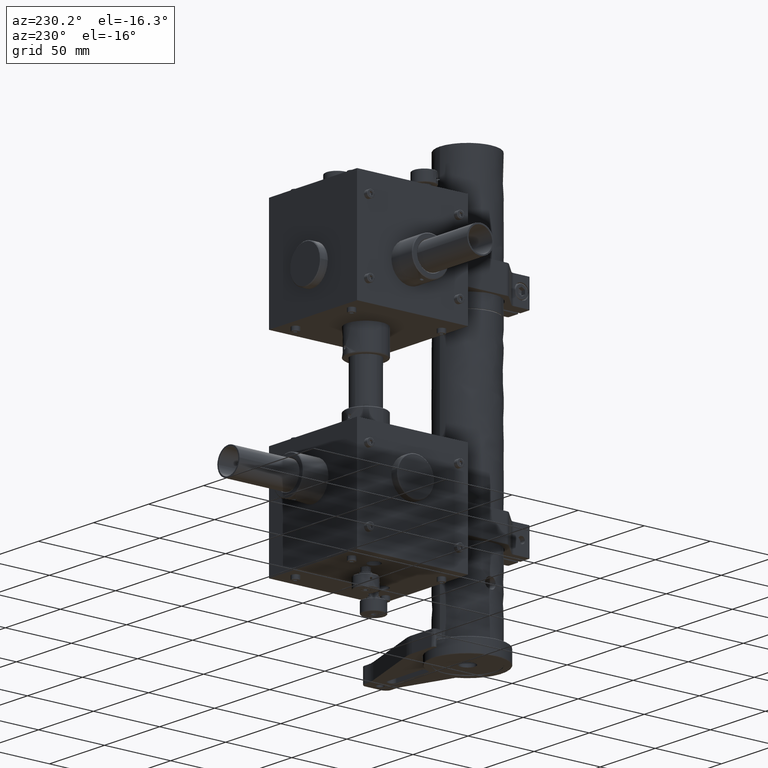
[diagram: clean part render]
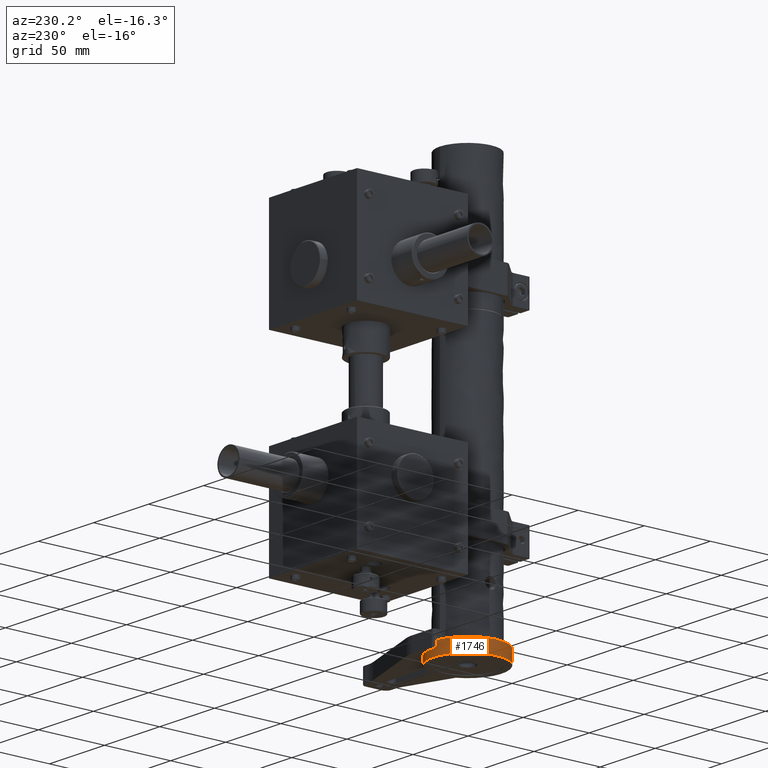
[diagram: same view with one face highlighted and labeled with its STEP entity id]
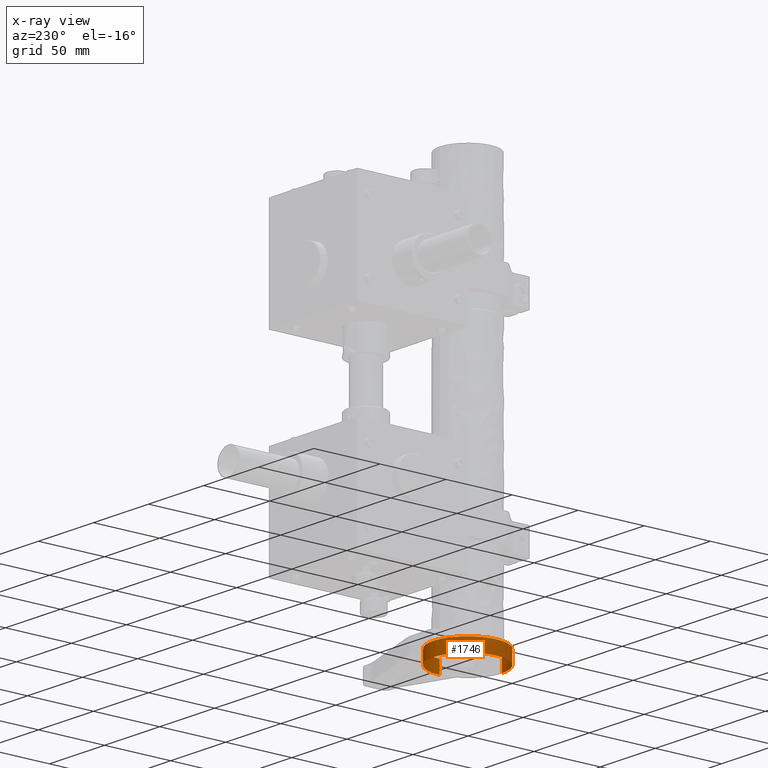
[diagram: x-ray of the same camera — body ghosted, the highlighted face saturated]
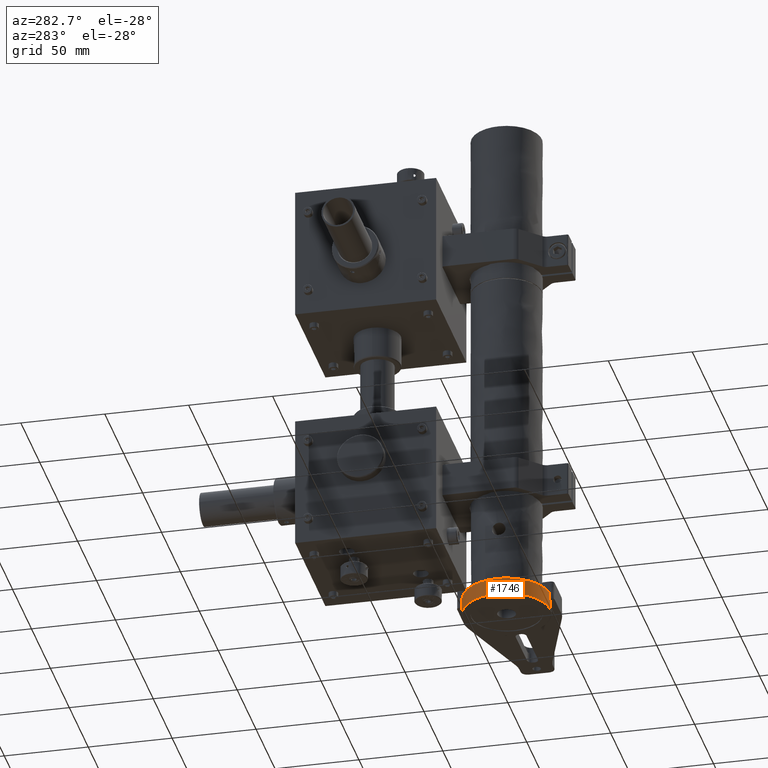
[diagram: same view with one face highlighted and labeled with its STEP entity id]
A machine part, auxiliary view. The second image highlights one B-rep face of the part: STEP entity #1746.
The next image is the same camera in x-ray: the body ghosted, the highlighted face saturated — about 0% of this face is hidden behind the body in this view.
A second angle (auxiliary view) of the same face is appended — the face is thin or edge-on in the first view.
In plain terms, the highlighted face is a freeform B-spline surface patch.
Its self-contained STEP definition (entity closure, byte-faithful):
#1746=ADVANCED_FACE('',(#4832),#105281,.T.);
#4832=FACE_OUTER_BOUND('',#7671,.T.);
#7671=EDGE_LOOP('',(#11995,#11996,#11997,#11998,#11999,#12000));
#11995=ORIENTED_EDGE('',*,*,#87299,.F.);
#11996=ORIENTED_EDGE('',*,*,#87302,.F.);
#11997=ORIENTED_EDGE('',*,*,#87304,.F.);
#11998=ORIENTED_EDGE('',*,*,#87306,.T.);
#11999=ORIENTED_EDGE('',*,*,#87307,.T.);
#12000=ORIENTED_EDGE('',*,*,#87305,.F.);
#27339=B_SPLINE_CURVE_WITH_KNOTS('',1,(#136616,#136617),.UNSPECIFIED.,.F.,
 .F.,(2,2),(81.6814089933347,163.362817986669),.UNSPECIFIED.);
#27342=B_SPLINE_CURVE_WITH_KNOTS('',1,(#136632,#136633),.UNSPECIFIED.,.F.,
 .F.,(2,2),(40.3496311323151,81.6814089933347),.UNSPECIFIED.);
#27347=B_SPLINE_CURVE_WITH_KNOTS('',1,(#136647,#136648),.UNSPECIFIED.,.F.,
 .F.,(2,2),(1.11000000000042,11.0100000000004),.UNSPECIFIED.);
#27349=B_SPLINE_CURVE_WITH_KNOTS('',1,(#136653,#136654),.UNSPECIFIED.,.F.,
 .F.,(2,2),(0.,9.9),.UNSPECIFIED.);
#27350=B_SPLINE_CURVE_WITH_KNOTS('',1,(#136655,#136656),.UNSPECIFIED.,.F.,
 .F.,(2,2),(81.6814089933347,163.362817986669),.UNSPECIFIED.);
#27351=B_SPLINE_CURVE_WITH_KNOTS('',1,(#136657,#136658),.UNSPECIFIED.,.F.,
 .F.,(2,2),(40.3496311323151,81.6814089933347),.UNSPECIFIED.);
#27352=B_SPLINE_CURVE_WITH_KNOTS('',1,(#136659,#136660),.UNSPECIFIED.,.F.,
 .F.,(2,2),(1.11000000000042,11.0100000000004),.UNSPECIFIED.);
#27353=B_SPLINE_CURVE_WITH_KNOTS('',1,(#136666,#136667),.UNSPECIFIED.,.F.,
 .F.,(2,2),(-123.013186854354,-81.6814089933346),.UNSPECIFIED.);
#27354=B_SPLINE_CURVE_WITH_KNOTS('',1,(#136675,#136676),.UNSPECIFIED.,.F.,
 .F.,(2,2),(-81.6814089933346,0.),.UNSPECIFIED.);
#27355=B_SPLINE_CURVE_WITH_KNOTS('',1,(#136677,#136678),.UNSPECIFIED.,.F.,
 .F.,(2,2),(0.,9.9),.UNSPECIFIED.);
#27358=B_SPLINE_CURVE_WITH_KNOTS('',1,(#136688,#136689),.UNSPECIFIED.,.F.,
 .F.,(2,2),(-123.013186854354,-81.6814089933346),.UNSPECIFIED.);
#27363=B_SPLINE_CURVE_WITH_KNOTS('',1,(#136706,#136707),.UNSPECIFIED.,.F.,
 .F.,(2,2),(-81.6814089933346,0.),.UNSPECIFIED.);
#47707=PCURVE('',#105278,#63203);
#47710=PCURVE('',#105279,#63206);
#47715=PCURVE('',#105280,#63211);
#47717=PCURVE('',#105280,#63213);
#47718=PCURVE('',#105281,#63214);
#47719=PCURVE('',#105281,#63215);
#47720=PCURVE('',#105281,#63216);
#47721=PCURVE('',#105281,#63217);
#47722=PCURVE('',#105281,#63218);
#47723=PCURVE('',#105281,#63219);
#47726=PCURVE('',#105282,#63222);
#47731=PCURVE('',#105283,#63227);
#63203=DEFINITIONAL_REPRESENTATION('',(#27339),#277684);
#63206=DEFINITIONAL_REPRESENTATION('',(#27342),#277684);
#63211=DEFINITIONAL_REPRESENTATION('',(#27347),#277684);
#63213=DEFINITIONAL_REPRESENTATION('',(#27349),#277684);
#63214=DEFINITIONAL_REPRESENTATION('',(#27350),#277684);
#63215=DEFINITIONAL_REPRESENTATION('',(#27351),#277684);
#63216=DEFINITIONAL_REPRESENTATION('',(#27352),#277684);
#63217=DEFINITIONAL_REPRESENTATION('',(#27353),#277684);
#63218=DEFINITIONAL_REPRESENTATION('',(#27354),#277684);
#63219=DEFINITIONAL_REPRESENTATION('',(#27355),#277684);
#63222=DEFINITIONAL_REPRESENTATION('',(#27358),#277684);
#63227=DEFINITIONAL_REPRESENTATION('',(#27363),#277684);
#77992=SURFACE_CURVE('',#96747,(#47707,#47718),.PCURVE_S1.);
#77995=SURFACE_CURVE('',#96750,(#47710,#47719),.PCURVE_S1.);
#77997=SURFACE_CURVE('',#96752,(#47715,#47720),.PCURVE_S1.);
#77998=SURFACE_CURVE('',#96753,(#47717,#47723),.PCURVE_S1.);
#77999=SURFACE_CURVE('',#96754,(#47721,#47726),.PCURVE_S1.);
#78000=SURFACE_CURVE('',#96755,(#47722,#47731),.PCURVE_S1.);
#87299=EDGE_CURVE('',#100891,#100892,#77992,.T.);
#87302=EDGE_CURVE('',#100893,#100891,#77995,.T.);
#87304=EDGE_CURVE('',#100895,#100893,#77997,.T.);
#87305=EDGE_CURVE('',#100892,#100894,#77998,.T.);
#87306=EDGE_CURVE('',#100895,#100896,#77999,.T.);
#87307=EDGE_CURVE('',#100896,#100894,#78000,.T.);
#96747=(
BOUNDED_CURVE()
B_SPLINE_CURVE(2,(#136609,#136610,#136611,#136612,#136613,#136614,#136615),
 .UNSPECIFIED.,.F.,.F.)
B_SPLINE_CURVE_WITH_KNOTS((3,2,2,3),(81.6814089933347,121.978777346525,
162.819481843192,163.362817986669),.UNSPECIFIED.)
CURVE()
GEOMETRIC_REPRESENTATION_ITEM()
RATIONAL_B_SPLINE_CURVE((1.,0.713752868344958,1.,0.707106781186548,1.,0.999955408421425,
1.))
REPRESENTATION_ITEM('')
);
#96750=(
BOUNDED_CURVE()
B_SPLINE_CURVE(2,(#136627,#136628,#136629,#136630,#136631),
 .UNSPECIFIED.,.F.,.F.)
B_SPLINE_CURVE_WITH_KNOTS((3,2,3),(40.3496311323151,40.892280983678,81.6814089933347),
 .UNSPECIFIED.)
CURVE()
GEOMETRIC_REPRESENTATION_ITEM()
RATIONAL_B_SPLINE_CURVE((1.,0.999955408442769,1.,0.707106781186548,1.))
REPRESENTATION_ITEM('')
);
#96752=(
BOUNDED_CURVE()
B_SPLINE_CURVE(1,(#136645,#136646),.UNSPECIFIED.,.F.,.F.)
B_SPLINE_CURVE_WITH_KNOTS((2,2),(1.11000000000042,11.0100000000004),
 .UNSPECIFIED.)
CURVE()
GEOMETRIC_REPRESENTATION_ITEM()
RATIONAL_B_SPLINE_CURVE((1.,1.))
REPRESENTATION_ITEM('')
);
#96753=(
BOUNDED_CURVE()
B_SPLINE_CURVE(1,(#136651,#136652),.UNSPECIFIED.,.F.,.F.)
B_SPLINE_CURVE_WITH_KNOTS((2,2),(0.,9.9),.UNSPECIFIED.)
CURVE()
GEOMETRIC_REPRESENTATION_ITEM()
RATIONAL_B_SPLINE_CURVE((1.,1.))
REPRESENTATION_ITEM('')
);
#96754=(
BOUNDED_CURVE()
B_SPLINE_CURVE(2,(#136661,#136662,#136663,#136664,#136665),
 .UNSPECIFIED.,.F.,.F.)
B_SPLINE_CURVE_WITH_KNOTS((3,2,3),(-123.013186854354,-82.2240588446978,
-81.6814089933346),.UNSPECIFIED.)
CURVE()
GEOMETRIC_REPRESENTATION_ITEM()
RATIONAL_B_SPLINE_CURVE((1.,0.707106781186548,1.,0.999955408442769,1.))
REPRESENTATION_ITEM('')
);
#96755=(
BOUNDED_CURVE()
B_SPLINE_CURVE(2,(#136668,#136669,#136670,#136671,#136672,#136673,#136674),
 .UNSPECIFIED.,.F.,.F.)
B_SPLINE_CURVE_WITH_KNOTS((3,2,2,3),(-81.6814089933346,-41.3840406401445,
-0.543336143477276,0.),.UNSPECIFIED.)
CURVE()
GEOMETRIC_REPRESENTATION_ITEM()
RATIONAL_B_SPLINE_CURVE((1.,0.713752868344958,1.,0.707106781186548,1.,0.999955408421425,
1.))
REPRESENTATION_ITEM('')
);
#100891=VERTEX_POINT('',#133504);
#100892=VERTEX_POINT('',#133505);
#100893=VERTEX_POINT('',#133506);
#100894=VERTEX_POINT('',#133507);
#100895=VERTEX_POINT('',#133508);
#100896=VERTEX_POINT('',#133509);
#105278=(
BOUNDED_SURFACE()
B_SPLINE_SURFACE(2,1,((#126473,#126474),(#126475,#126476),(#126477,#126478),
(#126479,#126480),(#126481,#126482),(#126483,#126484),(#126485,#126486),
(#126487,#126488),(#126489,#126490)),.UNSPECIFIED.,.T.,.F.,.F.)
B_SPLINE_SURFACE_WITH_KNOTS((3,2,2,2,3),(2,2),(0.,45.1132705055501,90.2265410111002,
135.33981151665,180.4530820222),(0.,40.6162135113561),.UNSPECIFIED.)
GEOMETRIC_REPRESENTATION_ITEM()
RATIONAL_B_SPLINE_SURFACE(((1.,1.),(0.707106781186548,0.707106781186548),
(1.,1.),(0.707106781186548,0.707106781186548),(1.,1.),(0.707106781186548,
0.707106781186548),(1.,1.),(0.707106781186548,0.707106781186548),(1.,1.)))
REPRESENTATION_ITEM('')
SURFACE()
);
#105279=(
BOUNDED_SURFACE()
B_SPLINE_SURFACE(2,1,((#126491,#126492),(#126493,#126494),(#126495,#126496),
(#126497,#126498),(#126499,#126500),(#126501,#126502),(#126503,#126504),
(#126505,#126506),(#126507,#126508)),.UNSPECIFIED.,.T.,.F.,.F.)
B_SPLINE_SURFACE_WITH_KNOTS((3,2,2,2,3),(2,2),(0.,45.1132705055501,90.2265410111002,
135.33981151665,180.4530820222),(0.,40.6162135113561),.UNSPECIFIED.)
GEOMETRIC_REPRESENTATION_ITEM()
RATIONAL_B_SPLINE_SURFACE(((1.,1.),(0.707106781186548,0.707106781186548),
(1.,1.),(0.707106781186548,0.707106781186548),(1.,1.),(0.707106781186548,
0.707106781186548),(1.,1.),(0.707106781186548,0.707106781186548),(1.,1.)))
REPRESENTATION_ITEM('')
SURFACE()
);
#105280=(
BOUNDED_SURFACE()
B_SPLINE_SURFACE(2,1,((#126509,#126510),(#126511,#126512),(#126513,#126514),
(#126515,#126516),(#126517,#126518),(#126519,#126520),(#126521,#126522),
(#126523,#126524),(#126525,#126526)),.UNSPECIFIED.,.T.,.F.,.F.)
B_SPLINE_SURFACE_WITH_KNOTS((3,2,2,2,3),(2,2),(0.,40.8407044966674,81.6814089933348,
122.522113490002,163.36281798667),(0.,12.1200000000008),.UNSPECIFIED.)
GEOMETRIC_REPRESENTATION_ITEM()
RATIONAL_B_SPLINE_SURFACE(((1.,1.),(0.707106781186548,0.707106781186548),
(1.,1.),(0.707106781186548,0.707106781186548),(1.,1.),(0.707106781186548,
0.707106781186548),(1.,1.),(0.707106781186548,0.707106781186548),(1.,1.)))
REPRESENTATION_ITEM('')
SURFACE()
);
#105281=(
BOUNDED_SURFACE()
B_SPLINE_SURFACE(2,1,((#126527,#126528),(#126529,#126530),(#126531,#126532),
(#126533,#126534),(#126535,#126536),(#126537,#126538),(#126539,#126540),
(#126541,#126542),(#126543,#126544)),.UNSPECIFIED.,.T.,.F.,.F.)
B_SPLINE_SURFACE_WITH_KNOTS((3,2,2,2,3),(2,2),(0.,40.8407044966674,81.6814089933348,
122.522113490002,163.36281798667),(0.,12.1200000000008),.UNSPECIFIED.)
GEOMETRIC_REPRESENTATION_ITEM()
RATIONAL_B_SPLINE_SURFACE(((1.,1.),(0.707106781186548,0.707106781186548),
(1.,1.),(0.707106781186548,0.707106781186548),(1.,1.),(0.707106781186548,
0.707106781186548),(1.,1.),(0.707106781186548,0.707106781186548),(1.,1.)))
REPRESENTATION_ITEM('')
SURFACE()
);
#105282=(
BOUNDED_SURFACE()
B_SPLINE_SURFACE(2,1,((#126545,#126546),(#126547,#126548),(#126549,#126550),
(#126551,#126552),(#126553,#126554),(#126555,#126556),(#126557,#126558),
(#126559,#126560),(#126561,#126562)),.UNSPECIFIED.,.T.,.F.,.F.)
B_SPLINE_SURFACE_WITH_KNOTS((3,2,2,2,3),(2,2),(0.,45.1132705055501,90.2265410111002,
135.33981151665,180.4530820222),(0.,40.616213511356),.UNSPECIFIED.)
GEOMETRIC_REPRESENTATION_ITEM()
RATIONAL_B_SPLINE_SURFACE(((1.,1.),(0.707106781186548,0.707106781186548),
(1.,1.),(0.707106781186548,0.707106781186548),(1.,1.),(0.707106781186548,
0.707106781186548),(1.,1.),(0.707106781186548,0.707106781186548),(1.,1.)))
REPRESENTATION_ITEM('')
SURFACE()
);
#105283=(
BOUNDED_SURFACE()
B_SPLINE_SURFACE(2,1,((#126563,#126564),(#126565,#126566),(#126567,#126568),
(#126569,#126570),(#126571,#126572),(#126573,#126574),(#126575,#126576),
(#126577,#126578),(#126579,#126580)),.UNSPECIFIED.,.T.,.F.,.F.)
B_SPLINE_SURFACE_WITH_KNOTS((3,2,2,2,3),(2,2),(0.,45.1132705055501,90.2265410111002,
135.33981151665,180.4530820222),(0.,40.616213511356),.UNSPECIFIED.)
GEOMETRIC_REPRESENTATION_ITEM()
RATIONAL_B_SPLINE_SURFACE(((1.,1.),(0.707106781186548,0.707106781186548),
(1.,1.),(0.707106781186548,0.707106781186548),(1.,1.),(0.707106781186548,
0.707106781186548),(1.,1.),(0.707106781186548,0.707106781186548),(1.,1.)))
REPRESENTATION_ITEM('')
SURFACE()
);
#126473=CARTESIAN_POINT('',(199.797538871781,32.9999999999991,26.2000000000007));
#126474=CARTESIAN_POINT('',(171.082661438113,32.4575850578609,-2.51999999999998));
#126475=CARTESIAN_POINT('',(199.797538871781,32.9999999999991,26.2000000000007));
#126476=CARTESIAN_POINT('',(170.540246495975,61.1724624915288,-2.51999999999979));
#126477=CARTESIAN_POINT('',(199.797538871781,32.9999999999991,26.2000000000007));
#126478=CARTESIAN_POINT('',(199.255123929643,61.7148774336672,-2.51999999999979));
#126479=CARTESIAN_POINT('',(199.797538871781,32.9999999999991,26.2000000000007));
#126480=CARTESIAN_POINT('',(227.97000136331,62.2572923758056,-2.51999999999978));
#126481=CARTESIAN_POINT('',(199.797538871781,32.9999999999991,26.2000000000007));
#126482=CARTESIAN_POINT('',(228.512416305449,33.5424149421377,-2.51999999999997));
#126483=CARTESIAN_POINT('',(199.797538871781,32.9999999999991,26.2000000000007));
#126484=CARTESIAN_POINT('',(229.054831247587,4.82753750846987,-2.52000000000017));
#126485=CARTESIAN_POINT('',(199.797538871781,32.9999999999991,26.2000000000007));
#126486=CARTESIAN_POINT('',(200.339953813919,4.28512256633147,-2.52000000000017));
#126487=CARTESIAN_POINT('',(199.797538871781,32.9999999999991,26.2000000000007));
#126488=CARTESIAN_POINT('',(171.625076380252,3.74270762419307,-2.52000000000017));
#126489=CARTESIAN_POINT('',(199.797538871781,32.9999999999991,26.2000000000007));
#126490=CARTESIAN_POINT('',(171.082661438113,32.4575850578609,-2.51999999999998));
#126491=CARTESIAN_POINT('',(199.797538871781,32.9999999999991,26.2000000000007));
#126492=CARTESIAN_POINT('',(171.082661438113,32.4575850578609,-2.51999999999998));
#126493=CARTESIAN_POINT('',(199.797538871781,32.9999999999991,26.2000000000007));
#126494=CARTESIAN_POINT('',(170.540246495975,61.1724624915288,-2.51999999999979));
#126495=CARTESIAN_POINT('',(199.797538871781,32.9999999999991,26.2000000000007));
#126496=CARTESIAN_POINT('',(199.255123929643,61.7148774336672,-2.51999999999979));
#126497=CARTESIAN_POINT('',(199.797538871781,32.9999999999991,26.2000000000007));
#126498=CARTESIAN_POINT('',(227.97000136331,62.2572923758056,-2.51999999999978));
#126499=CARTESIAN_POINT('',(199.797538871781,32.9999999999991,26.2000000000007));
#126500=CARTESIAN_POINT('',(228.512416305449,33.5424149421377,-2.51999999999997));
#126501=CARTESIAN_POINT('',(199.797538871781,32.9999999999991,26.2000000000007));
#126502=CARTESIAN_POINT('',(229.054831247587,4.82753750846987,-2.52000000000017));
#126503=CARTESIAN_POINT('',(199.797538871781,32.9999999999991,26.2000000000007));
#126504=CARTESIAN_POINT('',(200.339953813919,4.28512256633147,-2.52000000000017));
#126505=CARTESIAN_POINT('',(199.797538871781,32.9999999999991,26.2000000000007));
#126506=CARTESIAN_POINT('',(171.625076380252,3.74270762419307,-2.52000000000017));
#126507=CARTESIAN_POINT('',(199.797538871781,32.9999999999991,26.2000000000007));
#126508=CARTESIAN_POINT('',(171.082661438113,32.4575850578609,-2.51999999999998));
#126509=CARTESIAN_POINT('',(199.797538871781,58.9999999999994,-10.8099999999998));
#126510=CARTESIAN_POINT('',(199.797538871781,58.9999999999993,1.31000000000105));
#126511=CARTESIAN_POINT('',(173.797538871781,58.9999999999994,-10.8099999999998));
#126512=CARTESIAN_POINT('',(173.797538871781,58.9999999999993,1.31000000000105));
#126513=CARTESIAN_POINT('',(173.797538871781,32.9999999999994,-10.81));
#126514=CARTESIAN_POINT('',(173.797538871781,32.9999999999993,1.31000000000086));
#126515=CARTESIAN_POINT('',(173.797538871781,6.99999999999942,-10.8100000000002));
#126516=CARTESIAN_POINT('',(173.797538871781,6.99999999999932,1.31000000000068));
#126517=CARTESIAN_POINT('',(199.797538871781,6.99999999999941,-10.8100000000002));
#126518=CARTESIAN_POINT('',(199.797538871781,6.99999999999932,1.31000000000068));
#126519=CARTESIAN_POINT('',(225.797538871781,6.99999999999941,-10.8100000000002));
#126520=CARTESIAN_POINT('',(225.797538871781,6.99999999999932,1.31000000000068));
#126521=CARTESIAN_POINT('',(225.797538871781,32.9999999999994,-10.81));
#126522=CARTESIAN_POINT('',(225.797538871781,32.9999999999993,1.31000000000086));
#126523=CARTESIAN_POINT('',(225.797538871781,58.9999999999994,-10.8099999999998));
#126524=CARTESIAN_POINT('',(225.797538871781,58.9999999999993,1.31000000000105));
#126525=CARTESIAN_POINT('',(199.797538871781,58.9999999999994,-10.8099999999998));
#126526=CARTESIAN_POINT('',(199.797538871781,58.9999999999993,1.31000000000105));
#126527=CARTESIAN_POINT('',(199.797538871781,58.9999999999994,-10.8099999999998));
#126528=CARTESIAN_POINT('',(199.797538871781,58.9999999999993,1.31000000000105));
#126529=CARTESIAN_POINT('',(173.797538871781,58.9999999999994,-10.8099999999998));
#126530=CARTESIAN_POINT('',(173.797538871781,58.9999999999993,1.31000000000105));
#126531=CARTESIAN_POINT('',(173.797538871781,32.9999999999994,-10.81));
#126532=CARTESIAN_POINT('',(173.797538871781,32.9999999999993,1.31000000000086));
#126533=CARTESIAN_POINT('',(173.797538871781,6.99999999999942,-10.8100000000002));
#126534=CARTESIAN_POINT('',(173.797538871781,6.99999999999932,1.31000000000068));
#126535=CARTESIAN_POINT('',(199.797538871781,6.99999999999941,-10.8100000000002));
#126536=CARTESIAN_POINT('',(199.797538871781,6.99999999999932,1.31000000000068));
#126537=CARTESIAN_POINT('',(225.797538871781,6.99999999999941,-10.8100000000002));
#126538=CARTESIAN_POINT('',(225.797538871781,6.99999999999932,1.31000000000068));
#126539=CARTESIAN_POINT('',(225.797538871781,32.9999999999994,-10.81));
#126540=CARTESIAN_POINT('',(225.797538871781,32.9999999999993,1.31000000000086));
#126541=CARTESIAN_POINT('',(225.797538871781,58.9999999999994,-10.8099999999998));
#126542=CARTESIAN_POINT('',(225.797538871781,58.9999999999993,1.31000000000105));
#126543=CARTESIAN_POINT('',(199.797538871781,58.9999999999994,-10.8099999999998));
#126544=CARTESIAN_POINT('',(199.797538871781,58.9999999999993,1.31000000000105));
#126545=CARTESIAN_POINT('',(199.797538871781,32.9999999999996,-35.6999999999997));
#126546=CARTESIAN_POINT('',(171.082661438113,32.457585057861,-6.97999999999913));
#126547=CARTESIAN_POINT('',(199.797538871781,32.9999999999996,-35.6999999999997));
#126548=CARTESIAN_POINT('',(171.625076380252,3.74270762419314,-6.97999999999932));
#126549=CARTESIAN_POINT('',(199.797538871781,32.9999999999996,-35.6999999999997));
#126550=CARTESIAN_POINT('',(200.339953813919,4.28512256633153,-6.97999999999931));
#126551=CARTESIAN_POINT('',(199.797538871781,32.9999999999996,-35.6999999999997));
#126552=CARTESIAN_POINT('',(229.054831247587,4.82753750846993,-6.97999999999931));
#126553=CARTESIAN_POINT('',(199.797538871781,32.9999999999996,-35.6999999999997));
#126554=CARTESIAN_POINT('',(228.512416305449,33.5424149421378,-6.97999999999912));
#126555=CARTESIAN_POINT('',(199.797538871781,32.9999999999996,-35.6999999999997));
#126556=CARTESIAN_POINT('',(227.97000136331,62.2572923758056,-6.97999999999892));
#126557=CARTESIAN_POINT('',(199.797538871781,32.9999999999996,-35.6999999999997));
#126558=CARTESIAN_POINT('',(199.255123929643,61.7148774336672,-6.97999999999893));
#126559=CARTESIAN_POINT('',(199.797538871781,32.9999999999996,-35.6999999999997));
#126560=CARTESIAN_POINT('',(170.540246495975,61.1724624915288,-6.97999999999894));
#126561=CARTESIAN_POINT('',(199.797538871781,32.9999999999996,-35.6999999999997));
#126562=CARTESIAN_POINT('',(171.082661438113,32.457585057861,-6.97999999999913));
#126563=CARTESIAN_POINT('',(199.797538871781,32.9999999999996,-35.6999999999997));
#126564=CARTESIAN_POINT('',(171.082661438113,32.457585057861,-6.97999999999913));
#126565=CARTESIAN_POINT('',(199.797538871781,32.9999999999996,-35.6999999999997));
#126566=CARTESIAN_POINT('',(171.625076380252,3.74270762419314,-6.97999999999932));
#126567=CARTESIAN_POINT('',(199.797538871781,32.9999999999996,-35.6999999999997));
#126568=CARTESIAN_POINT('',(200.339953813919,4.28512256633153,-6.97999999999931));
#126569=CARTESIAN_POINT('',(199.797538871781,32.9999999999996,-35.6999999999997));
#126570=CARTESIAN_POINT('',(229.054831247587,4.82753750846993,-6.97999999999931));
#126571=CARTESIAN_POINT('',(199.797538871781,32.9999999999996,-35.6999999999997));
#126572=CARTESIAN_POINT('',(228.512416305449,33.5424149421378,-6.97999999999912));
#126573=CARTESIAN_POINT('',(199.797538871781,32.9999999999996,-35.6999999999997));
#126574=CARTESIAN_POINT('',(227.97000136331,62.2572923758056,-6.97999999999892));
#126575=CARTESIAN_POINT('',(199.797538871781,32.9999999999996,-35.6999999999997));
#126576=CARTESIAN_POINT('',(199.255123929643,61.7148774336672,-6.97999999999893));
#126577=CARTESIAN_POINT('',(199.797538871781,32.9999999999996,-35.6999999999997));
#126578=CARTESIAN_POINT('',(170.540246495975,61.1724624915288,-6.97999999999894));
#126579=CARTESIAN_POINT('',(199.797538871781,32.9999999999996,-35.6999999999997));
#126580=CARTESIAN_POINT('',(171.082661438113,32.457585057861,-6.97999999999913));
#133504=CARTESIAN_POINT('',(173.802176292556,32.5089558323253,0.200000000000625));
#133505=CARTESIAN_POINT('',(225.792901451006,33.4910441676733,0.200000000000564));
#133506=CARTESIAN_POINT('',(199.797538871781,58.9999999999993,0.200000000000668));
#133507=CARTESIAN_POINT('',(225.792901451006,33.4910441676734,-9.69999999999967));
#133508=CARTESIAN_POINT('',(199.797538871781,58.9999999999993,-9.69999999999942));
#133509=CARTESIAN_POINT('',(173.802176292556,32.5089558323254,-9.69999999999974));
#136609=CARTESIAN_POINT('',(173.802176292556,32.5089558323253,0.200000000000625));
#136610=CARTESIAN_POINT('',(174.284032390802,6.99999999999931,0.20000000000045));
#136611=CARTESIAN_POINT('',(199.797538871781,6.99999999999932,0.200000000000416));
#136612=CARTESIAN_POINT('',(225.797538871781,6.99999999999933,0.20000000000038));
#136613=CARTESIAN_POINT('',(225.797538871781,32.9999999999993,0.200000000000561));
#136614=CARTESIAN_POINT('',(225.797538871781,33.2455439817356,0.200000000000562));
#136615=CARTESIAN_POINT('',(225.792901451006,33.4910441676733,0.200000000000564));
#136616=CARTESIAN_POINT('',(180.4530820222,36.7695526217003));
#136617=CARTESIAN_POINT('',(90.2265410111002,36.7695526217003));
#136627=CARTESIAN_POINT('',(199.797538871781,58.9999999999993,0.200000000000668));
#136628=CARTESIAN_POINT('',(199.551994831284,58.9999999988893,0.200000000000672));
#136629=CARTESIAN_POINT('',(199.306494704107,58.9953625792247,0.200000000000672));
#136630=CARTESIAN_POINT('',(173.311132124882,58.5043184115506,0.200000000000735));
#136631=CARTESIAN_POINT('',(173.802176292556,32.5089558323253,0.200000000000625));
#136632=CARTESIAN_POINT('',(45.7134479686523,36.7695526217007));
#136633=CARTESIAN_POINT('',(0.,36.7695526217003));
#136645=CARTESIAN_POINT('',(199.797538871781,58.9999999999993,-9.69999999999942));
#136646=CARTESIAN_POINT('',(199.797538871781,58.9999999999993,0.200000000000668));
#136647=CARTESIAN_POINT('',(163.36281798667,1.11000000000042));
#136648=CARTESIAN_POINT('',(163.36281798667,11.0100000000004));
#136651=CARTESIAN_POINT('',(225.792901451006,33.4910441676733,0.200000000000564));
#136652=CARTESIAN_POINT('',(225.792901451006,33.4910441676734,-9.69999999999967));
#136653=CARTESIAN_POINT('',(123.065449633479,11.0100000000004));
#136654=CARTESIAN_POINT('',(123.065449633479,1.11000000000044));
#136655=CARTESIAN_POINT('',(41.3840406401447,11.0100000000004));
#136656=CARTESIAN_POINT('',(123.065449633479,11.0100000000004));
#136657=CARTESIAN_POINT('',(0.,11.0100000000004));
#136658=CARTESIAN_POINT('',(41.3840406401447,11.0100000000004));
#136659=CARTESIAN_POINT('',(0.,1.11000000000042));
#136660=CARTESIAN_POINT('',(0.,11.0100000000004));
#136661=CARTESIAN_POINT('',(199.797538871781,58.9999999999993,-9.69999999999942));
#136662=CARTESIAN_POINT('',(173.797538871781,58.9999999999994,-9.69999999999948));
#136663=CARTESIAN_POINT('',(173.797538871781,32.9999999999994,-9.69999999999974));
#136664=CARTESIAN_POINT('',(173.797538871781,32.7544560770344,-9.69999999999974));
#136665=CARTESIAN_POINT('',(173.802176292556,32.5089558323254,-9.69999999999974));
#136666=CARTESIAN_POINT('',(0.,1.11000000000042));
#136667=CARTESIAN_POINT('',(41.3840406401447,1.11000000000045));
#136668=CARTESIAN_POINT('',(173.802176292556,32.5089558323254,-9.69999999999974));
#136669=CARTESIAN_POINT('',(174.284032390802,6.99999999999942,-9.69999999999993));
#136670=CARTESIAN_POINT('',(199.797538871781,6.99999999999942,-9.6999999999999));
#136671=CARTESIAN_POINT('',(225.797538871781,6.99999999999942,-9.69999999999987));
#136672=CARTESIAN_POINT('',(225.797538871781,32.9999999999994,-9.69999999999967));
#136673=CARTESIAN_POINT('',(225.797538871781,33.2455439817357,-9.69999999999967));
#136674=CARTESIAN_POINT('',(225.792901451006,33.4910441676734,-9.69999999999967));
#136675=CARTESIAN_POINT('',(41.3840406401447,1.11000000000045));
#136676=CARTESIAN_POINT('',(123.065449633479,1.11000000000044));
#136677=CARTESIAN_POINT('',(123.065449633479,11.0100000000004));
#136678=CARTESIAN_POINT('',(123.065449633479,1.11000000000044));
#136688=CARTESIAN_POINT('',(134.739634053548,36.7695526217006));
#136689=CARTESIAN_POINT('',(180.4530820222,36.7695526217002));
#136706=CARTESIAN_POINT('',(0.,36.7695526217002));
#136707=CARTESIAN_POINT('',(90.2265410111002,36.7695526217002));
#277684=(
GEOMETRIC_REPRESENTATION_CONTEXT(2)
PARAMETRIC_REPRESENTATION_CONTEXT()
REPRESENTATION_CONTEXT('pspace','')
);